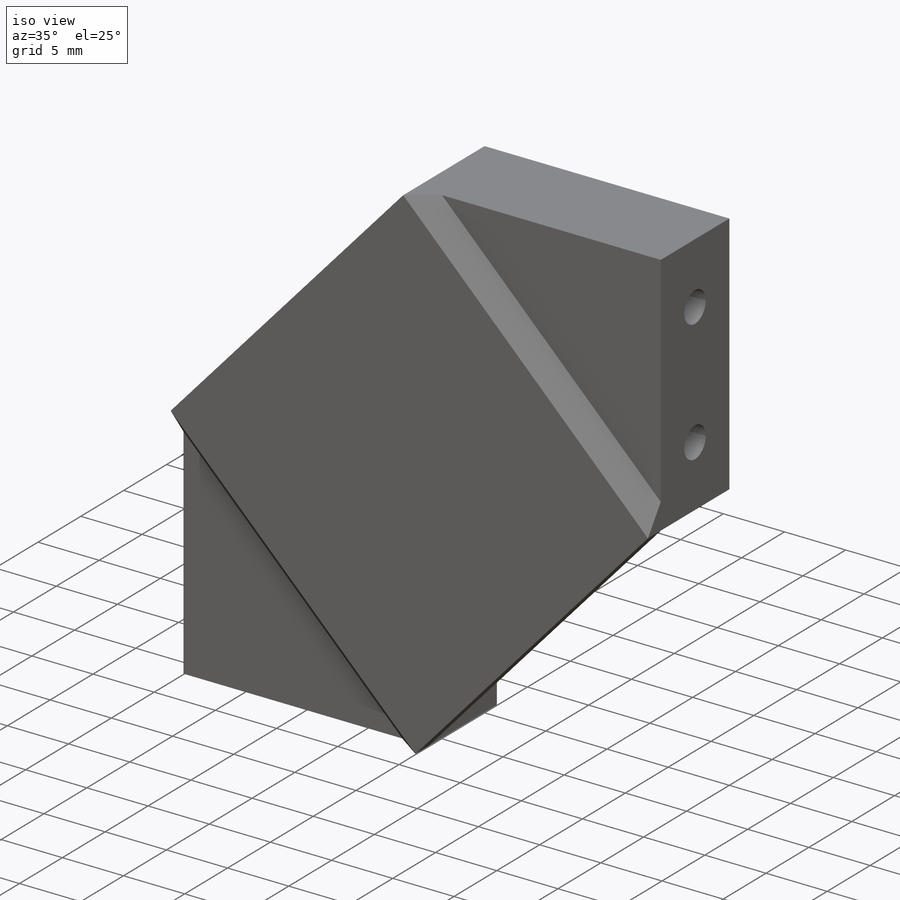
[diagram: iso view]
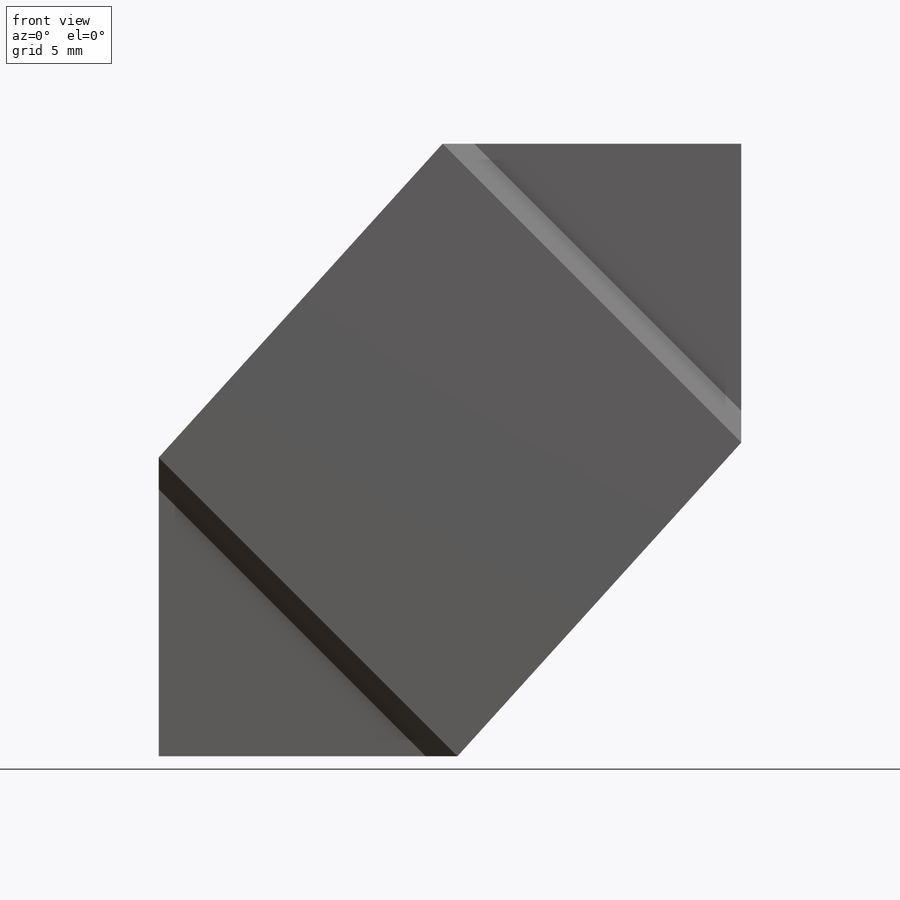
[diagram: front view]
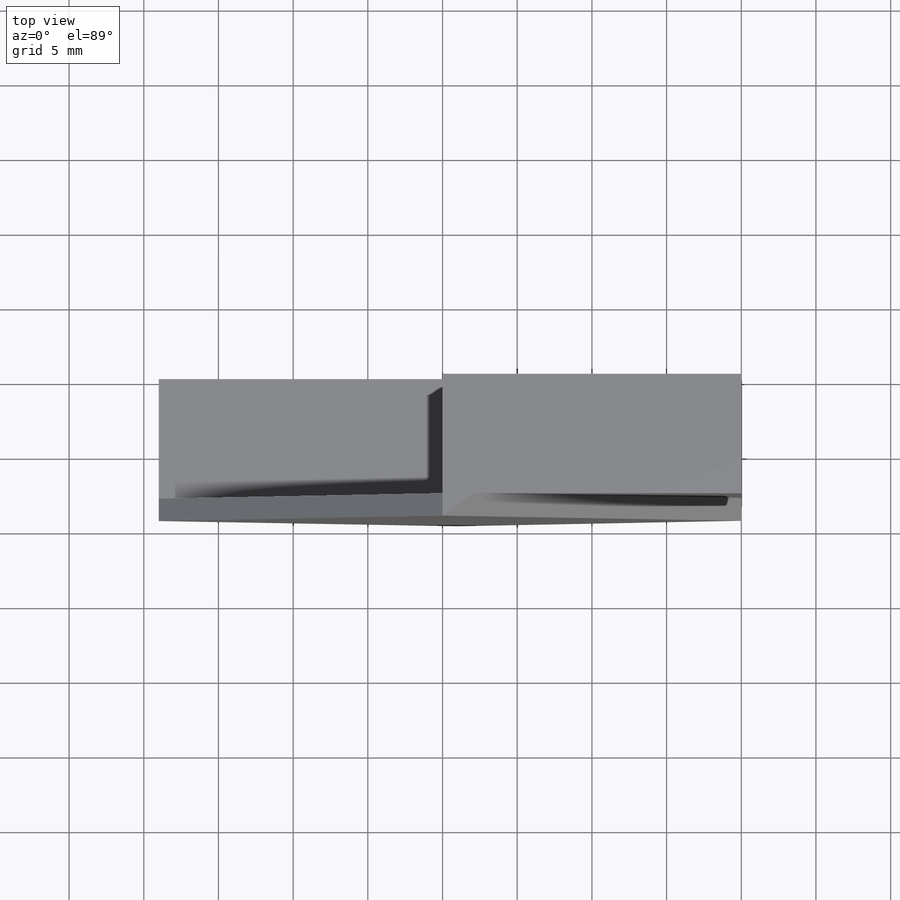
[diagram: top view]
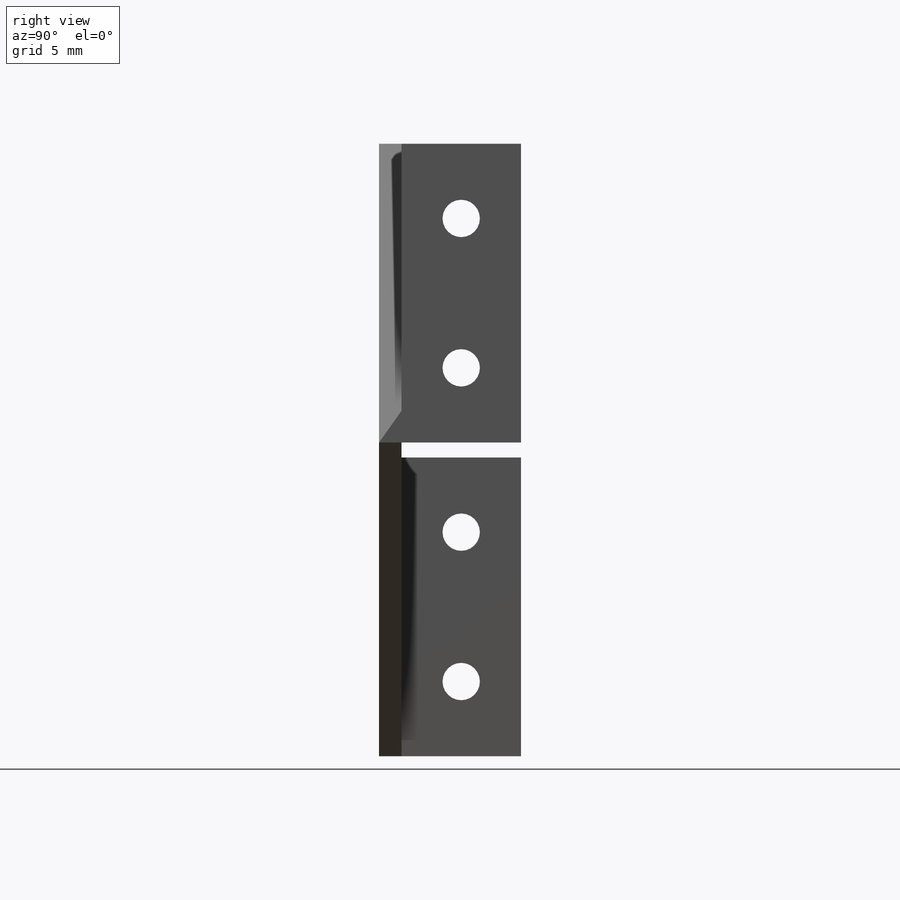
[diagram: right view]
SOLIDWORKS PART (.sldprt)
format: sldprt  version: not decoded by parser v0  size: 193,024 bytes
history: native  units: mm
features: sketch x4, extrude x2, material x1, hole x1, chamfer x1 (+11 scaffold rows collapsed)
feature tree (20):
  scaffold x11  (default folders/planes/origin — collapsed)
  material  "ABS"
  sketch  "Sketch1"  dims[D1=20.0mm D2=1.0mm D3=1.0mm]
  extrude  "Boss-Extrude1"  Depth=8mm
  hole  "Tap Drill for M3 Tap1"  Diameter=2.5mm Depth=39mm
  sketch  "Sketch4"  dims[D1=10.0mm D2=10.0mm]
  sketch  "Sketch3"  dims[hole-wizard template sketch: 60 standard entries collapsed; hole parameters kept: c18.Thru Hole Depth=39.0mm]
  sketch  "Sketch18"
  extrude  "Boss-Extrude2"  Depth=1.5mm
  chamfer  "Chamfer1"  Distance=1.5mm Angle=45deg
decode coverage: 7 of 8 modeling features carry decoded parameters
note: ~ marks probable driven/reference dimensions
note: suppression state not decoded; provenance and decode notes live in map.json
